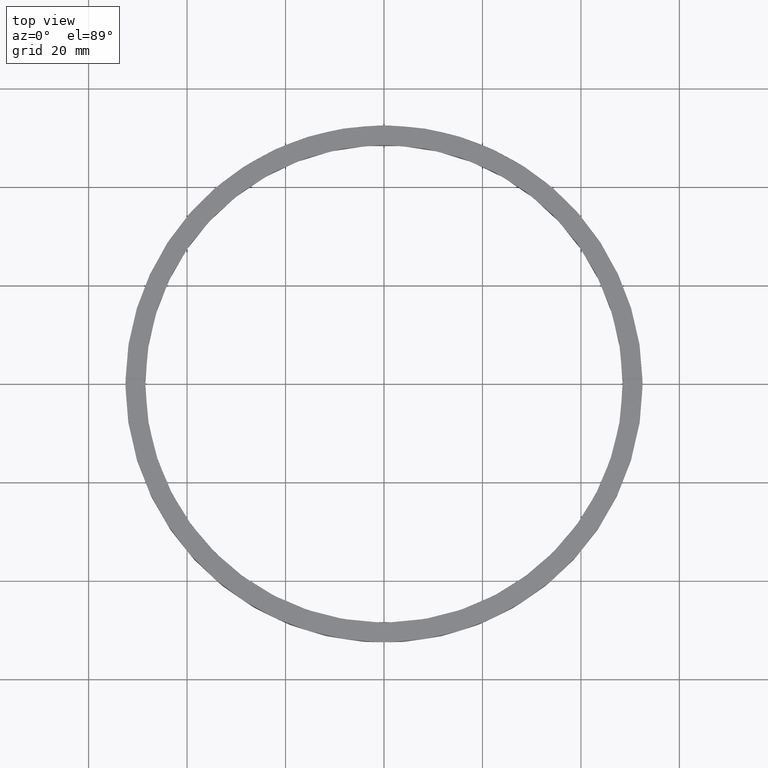
[diagram: clean part render]
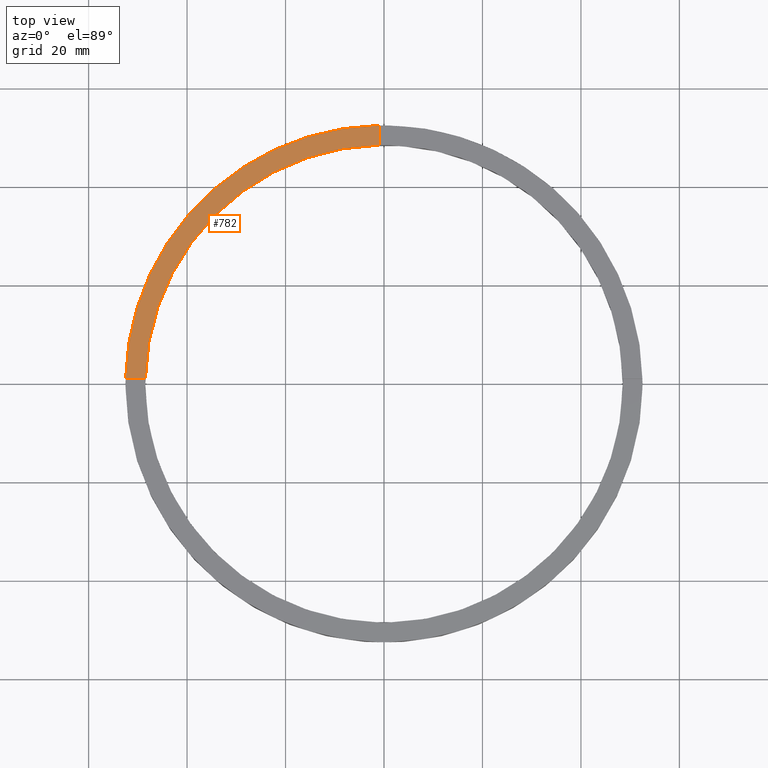
[diagram: same view with one face highlighted and labeled with its STEP entity id]
A machine part, top view. The second image highlights one B-rep face of the part: STEP entity #782.
In plain terms, the highlighted planar face has unit normal (0, 0, 1).
Its self-contained STEP definition (entity closure, byte-faithful):
#2 = AXIS2_PLACEMENT_3D ( 'NONE', #266, #256, #751 ) ;
#57 = DIRECTION ( 'NONE',  ( 0.000000000000000000, 0.000000000000000000, 1.000000000000000000 ) ) ;
#91 = AXIS2_PLACEMENT_3D ( 'NONE', #558, #519, #556 ) ;
#116 = CARTESIAN_POINT ( 'NONE',  ( -1.000000000000027089, 48.48968962573384545, 5.000000000000000000 ) ) ;
#120 = EDGE_CURVE ( 'NONE', #124, #130, #474, .T. ) ;
#124 = VERTEX_POINT ( 'NONE', #752 ) ;
#130 = VERTEX_POINT ( 'NONE', #116 ) ;
#141 = ORIENTED_EDGE ( 'NONE', *, *, #318, .T. ) ;
#153 = VERTEX_POINT ( 'NONE', #699 ) ;
#168 = CIRCLE ( 'NONE', #526, 48.50000000000000000 ) ;
#175 = LINE ( 'NONE', #728, #720 ) ;
#196 = ORIENTED_EDGE ( 'NONE', *, *, #120, .F. ) ;
#204 = ORIENTED_EDGE ( 'NONE', *, *, #654, .F. ) ;
#242 = CARTESIAN_POINT ( 'NONE',  ( -48.48968962573384545, 0.9999999999999685807, 5.000000000000000000 ) ) ;
#246 = EDGE_CURVE ( 'NONE', #130, #626, #168, .T. ) ;
#256 = DIRECTION ( 'NONE',  ( 0.000000000000000000, 0.000000000000000000, 1.000000000000000000 ) ) ;
#266 = CARTESIAN_POINT ( 'NONE',  ( 0.000000000000000000, 0.000000000000000000, 5.000000000000000000 ) ) ;
#288 = DIRECTION ( 'NONE',  ( -0.000000000000000000, -1.000000000000000000, -0.000000000000000000 ) ) ;
#300 = CARTESIAN_POINT ( 'NONE',  ( -1.000000000000027089, 42.49999999999999289, 5.000000000000000000 ) ) ;
#318 = EDGE_CURVE ( 'NONE', #124, #153, #684, .T. ) ;
#383 = EDGE_LOOP ( 'NONE', ( #196, #141, #204, #706 ) ) ;
#472 = VECTOR ( 'NONE', #288, 1000.000000000000000 ) ;
#474 = LINE ( 'NONE', #300, #472 ) ;
#492 = PLANE ( 'NONE',  #91 ) ;
#519 = DIRECTION ( 'NONE',  ( 0.000000000000000000, 0.000000000000000000, 1.000000000000000000 ) ) ;
#520 = DIRECTION ( 'NONE',  ( -1.000000000000000000, -1.951563910473907735E-16, 0.000000000000000000 ) ) ;
#526 = AXIS2_PLACEMENT_3D ( 'NONE', #764, #57, #601 ) ;
#556 = DIRECTION ( 'NONE',  ( 1.000000000000000000, 0.000000000000000000, -0.000000000000000000 ) ) ;
#558 = CARTESIAN_POINT ( 'NONE',  ( 0.000000000000000000, 0.000000000000000000, 5.000000000000000000 ) ) ;
#601 = DIRECTION ( 'NONE',  ( 1.000000000000000000, 0.000000000000000000, 0.000000000000000000 ) ) ;
#626 = VERTEX_POINT ( 'NONE', #242 ) ;
#654 = EDGE_CURVE ( 'NONE', #626, #153, #175, .T. ) ;
#684 = CIRCLE ( 'NONE', #2, 52.50000000000000000 ) ;
#698 = FACE_OUTER_BOUND ( 'NONE', #383, .T. ) ;
#699 = CARTESIAN_POINT ( 'NONE',  ( -52.49047532648184244, 0.9999999999999679146, 5.000000000000000000 ) ) ;
#706 = ORIENTED_EDGE ( 'NONE', *, *, #246, .F. ) ;
#720 = VECTOR ( 'NONE', #520, 1000.000000000000000 ) ;
#728 = CARTESIAN_POINT ( 'NONE',  ( -42.50000000000018474, 0.9999999999999699130, 5.000000000000000000 ) ) ;
#751 = DIRECTION ( 'NONE',  ( 1.000000000000000000, 0.000000000000000000, 0.000000000000000000 ) ) ;
#752 = CARTESIAN_POINT ( 'NONE',  ( -1.000000000000027089, 52.49047532648184244, 5.000000000000000000 ) ) ;
#764 = CARTESIAN_POINT ( 'NONE',  ( 0.000000000000000000, 0.000000000000000000, 5.000000000000000000 ) ) ;
#782 = ADVANCED_FACE ( 'NONE', ( #698 ), #492, .T. ) ;